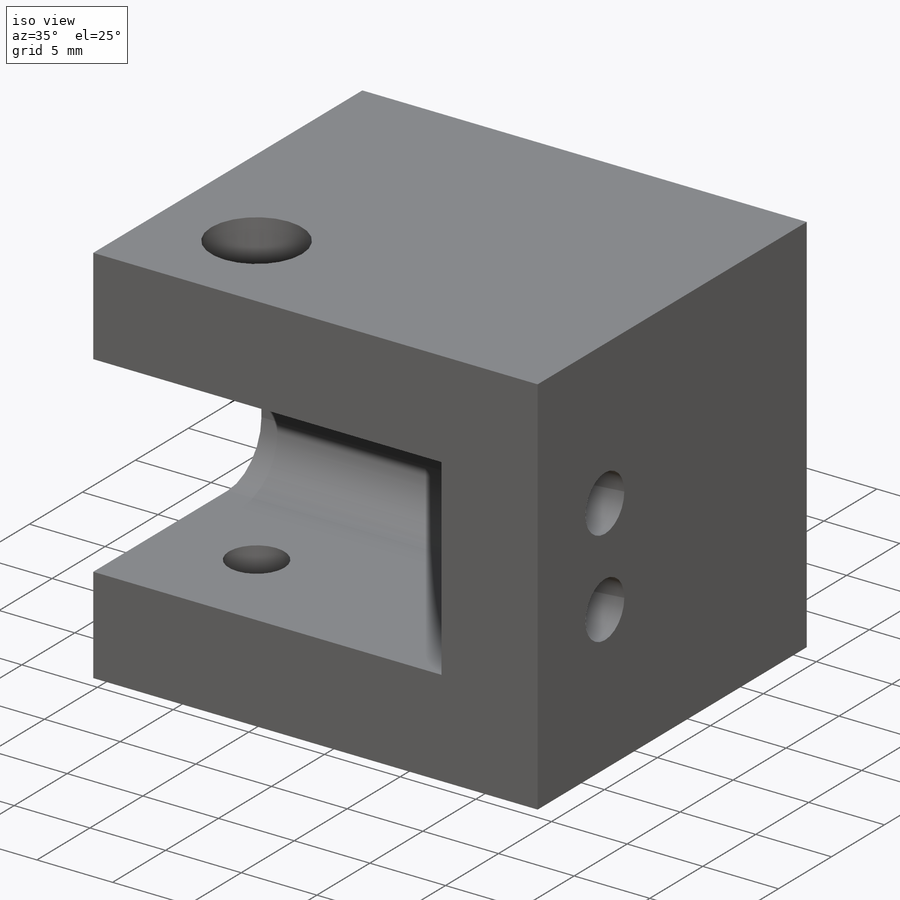
[diagram: iso view]
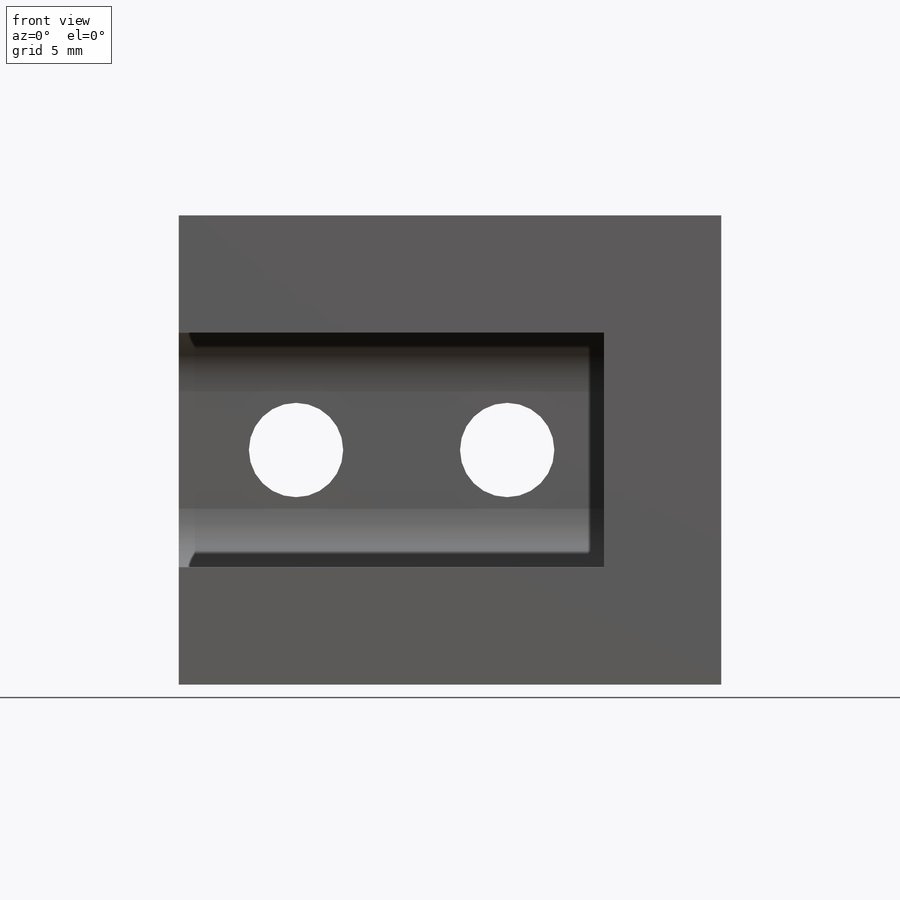
[diagram: front view]
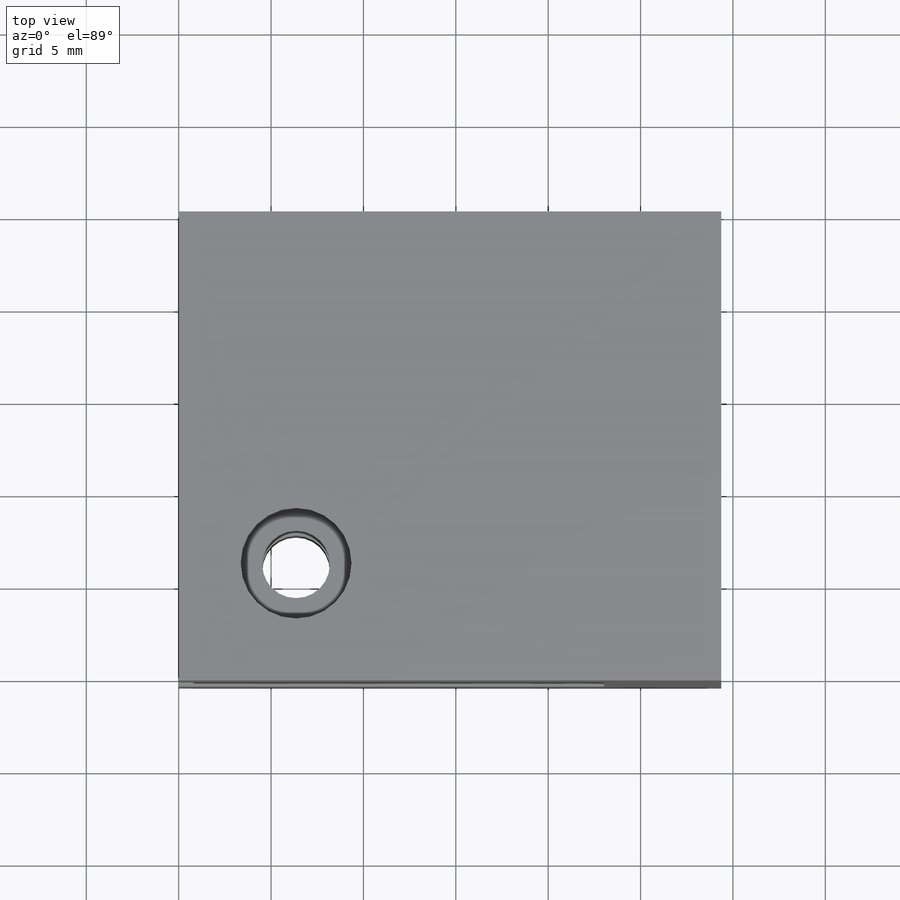
[diagram: top view]
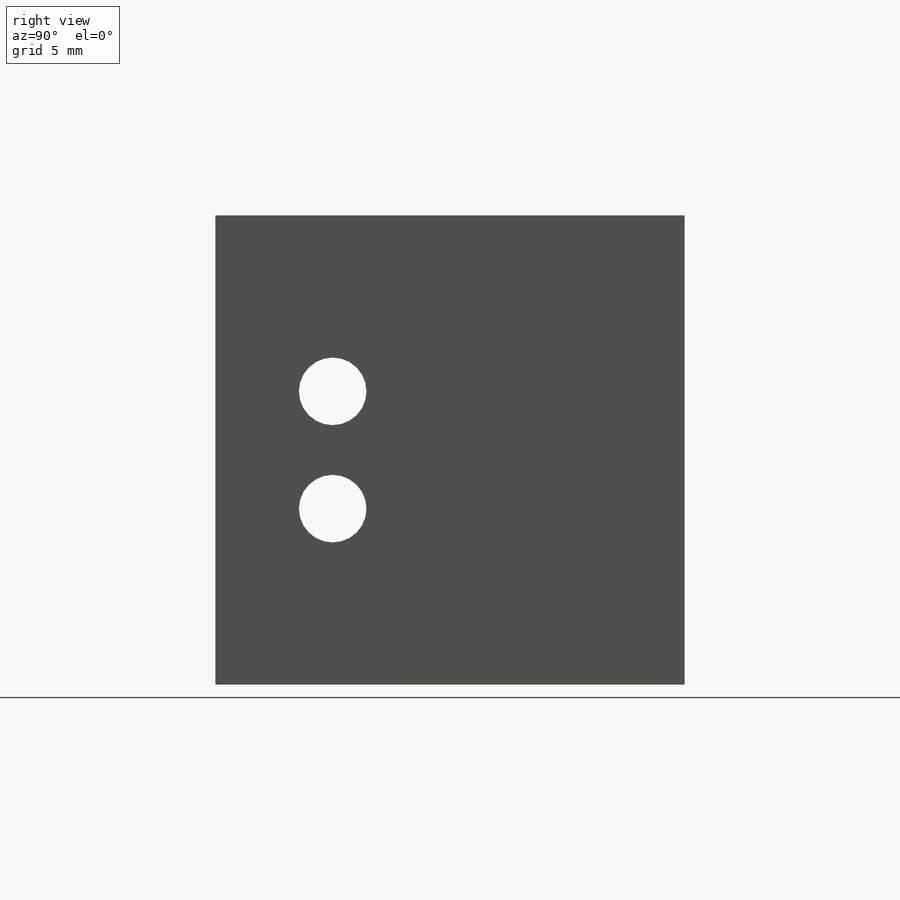
[diagram: right view]
SOLIDWORKS PART (.sldprt)
format: sldprt  version: not decoded by parser v0  size: 294,400 bytes
history: native  units: mm
features: sketch x8, hole x3, material x1, extrude x1, cut_extrude x1, fillet x1 (+13 scaffold rows collapsed)
feature tree (28):
  scaffold x13  (default folders/planes/origin — collapsed)
  material  "6061 Alloy"
  sketch  "Sketch1"  dims[D1=~29.36875mm D2=25.4mm]
  extrude  "Boss-Extrude1"  Depth=25.4mm
  sketch  "Sketch2"  dims[D1=6.35mm D2=6.35mm D3=6.35mm]
  cut_extrude  "Cut-Extrude1"  Depth=15.875mm
  hole  "CBORE for #6 Socket Head Cap Screw1"  Diameter=3.6576mm Depth=25.4mm
  sketch  "Sketch4"  dims[D1=6.35mm D2=6.35mm]
  sketch  "Sketch5"  dims[hole-wizard template sketch: 42 standard entries collapsed; hole parameters kept: c12.Thru Hole Depth=25.4mm c12.C'Bore Dia.=6.0mm c12.C'Bore Depth=3.5052mm]
  hole  "#6 Clearance Hole2"  Diameter=3.6576mm Depth=29.36875mm
  sketch  "Sketch7"  dims[D1=6.35mm D2=6.35mm D3=9.525mm D4=9.525mm]
  sketch  "Sketch6"  dims[hole-wizard template sketch: 60 standard entries collapsed; hole parameters kept: c18.Thru Hole Depth=~29.36875mm]
  fillet  "Fillet1"  Radius=3.175mm
  hole  "Tap Drill for 1/4-20 Tap2"  Diameter=5.1054mm Depth=9.525mm
  sketch  "Sketch9"  dims[D1=6.35mm D2=17.78mm D3=12.7mm D4=12.7mm]
  sketch  "Sketch8"  dims[hole-wizard template sketch: 60 standard entries collapsed; hole parameters kept: c18.Thru Hole Depth=9.525mm]
decode coverage: 14 of 14 modeling features carry decoded parameters
note: ~ marks probable driven/reference dimensions
note: suppression state not decoded; provenance and decode notes live in map.json
